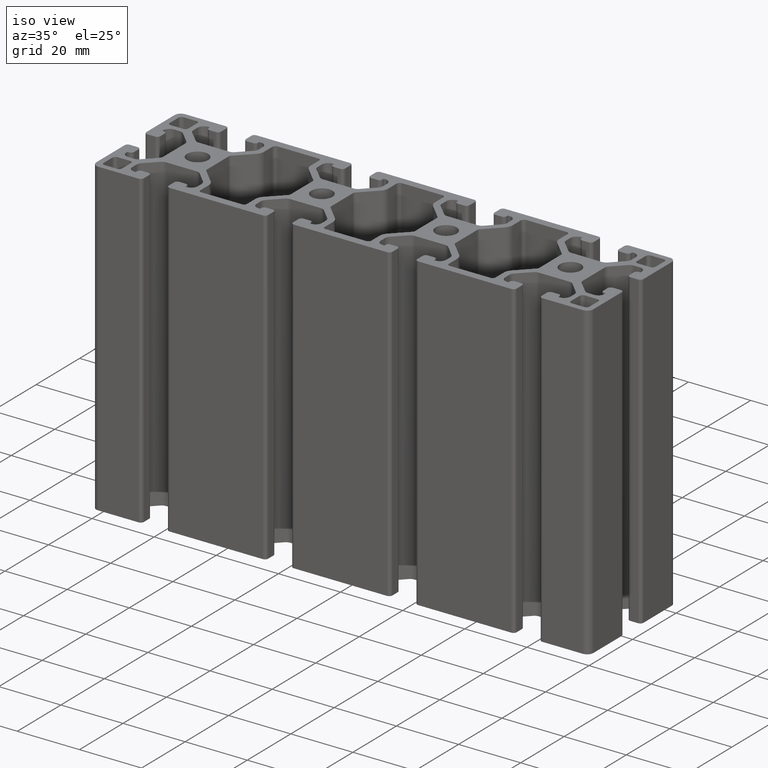
[diagram: clean part render]
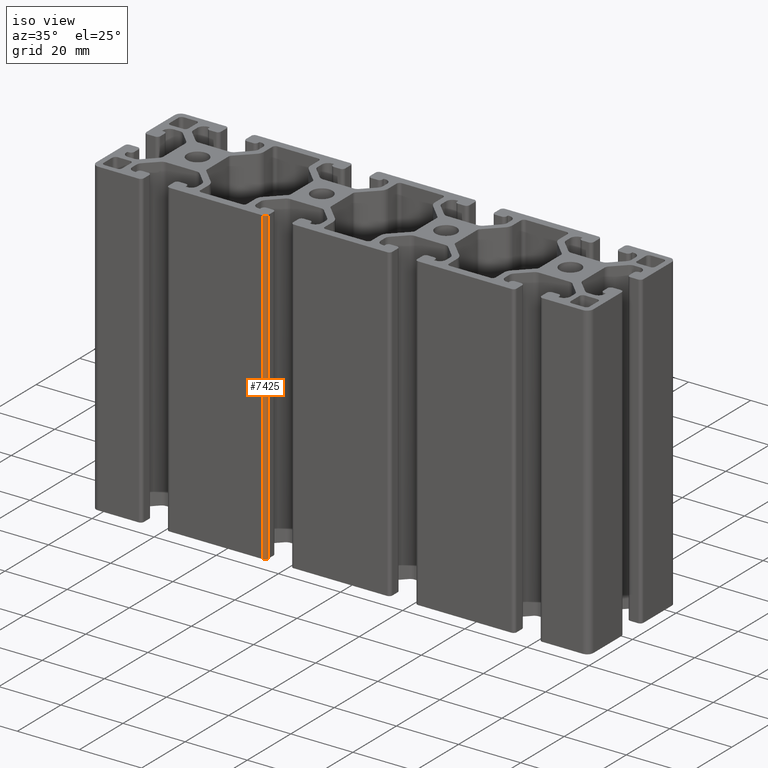
[diagram: same view with one face highlighted and labeled with its STEP entity id]
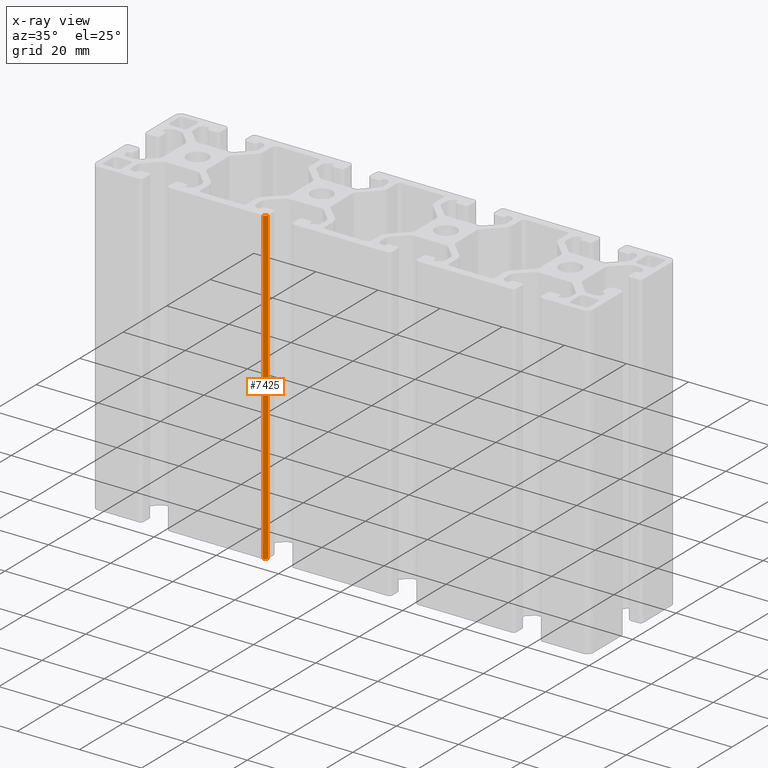
[diagram: x-ray of the same camera — body ghosted, the highlighted face saturated]
A machine part, iso view. The second image highlights one B-rep face of the part: STEP entity #7425.
The next image is the same camera in x-ray: the body ghosted, the highlighted face saturated — about 0% of this face is hidden behind the body in this view.
In plain terms, the highlighted cylindrical surface (edge-blend (fillet) strip) has radius 1 mm, axis along (0, 0, 1).
Its self-contained STEP definition (entity closure, byte-faithful):
#451=FACE_OUTER_BOUND('',#831,.T.);
#831=EDGE_LOOP('',(#5629,#5630,#5631,#5632));
#1452=LINE('',#11864,#2216);
#1453=LINE('',#11867,#2217);
#2216=VECTOR('',#9608,100.);
#2217=VECTOR('',#9611,100.);
#2757=CIRCLE('',#8014,0.999998004051171);
#2758=CIRCLE('',#8015,0.999998004051171);
#3343=VERTEX_POINT('',#11860);
#3344=VERTEX_POINT('',#11861);
#3345=VERTEX_POINT('',#11863);
#3346=VERTEX_POINT('',#11865);
#4300=EDGE_CURVE('',#3343,#3344,#2757,.T.);
#4301=EDGE_CURVE('',#3343,#3345,#1452,.T.);
#4302=EDGE_CURVE('',#3346,#3345,#2758,.T.);
#4303=EDGE_CURVE('',#3346,#3344,#1453,.T.);
#5629=ORIENTED_EDGE('',*,*,#4300,.F.);
#5630=ORIENTED_EDGE('',*,*,#4301,.T.);
#5631=ORIENTED_EDGE('',*,*,#4302,.F.);
#5632=ORIENTED_EDGE('',*,*,#4303,.T.);
#7137=CYLINDRICAL_SURFACE('',#8013,0.999998004051171);
#7425=ADVANCED_FACE('',(#451),#7137,.T.);
#8013=AXIS2_PLACEMENT_3D('',#11859,#9604,#9605);
#8014=AXIS2_PLACEMENT_3D('',#11862,#9606,#9607);
#8015=AXIS2_PLACEMENT_3D('',#11866,#9609,#9610);
#9604=DIRECTION('center_axis',(0.,0.,1.));
#9605=DIRECTION('ref_axis',(6.21726134723647E-14,1.,0.));
#9606=DIRECTION('center_axis',(0.,0.,1.));
#9607=DIRECTION('ref_axis',(6.21726134723647E-14,1.,0.));
#9608=DIRECTION('',(0.,0.,-1.));
#9609=DIRECTION('center_axis',(0.,0.,-1.));
#9610=DIRECTION('ref_axis',(6.21726134723647E-14,1.,0.));
#9611=DIRECTION('',(0.,0.,1.));
#11859=CARTESIAN_POINT('Origin',(-24.9999980040511,-19.0000019959488,0.));
#11860=CARTESIAN_POINT('',(-24.9999980040512,-20.,100.));
#11861=CARTESIAN_POINT('',(-24.,-19.0000019959488,100.));
#11862=CARTESIAN_POINT('Origin',(-24.9999980040511,-19.0000019959488,100.));
#11863=CARTESIAN_POINT('',(-24.9999980040512,-20.,0.));
#11864=CARTESIAN_POINT('',(-24.9999980040511,-20.,0.));
#11865=CARTESIAN_POINT('',(-24.,-19.0000019959488,0.));
#11866=CARTESIAN_POINT('Origin',(-24.9999980040511,-19.0000019959488,0.));
#11867=CARTESIAN_POINT('',(-24.,-19.0000019959488,0.));